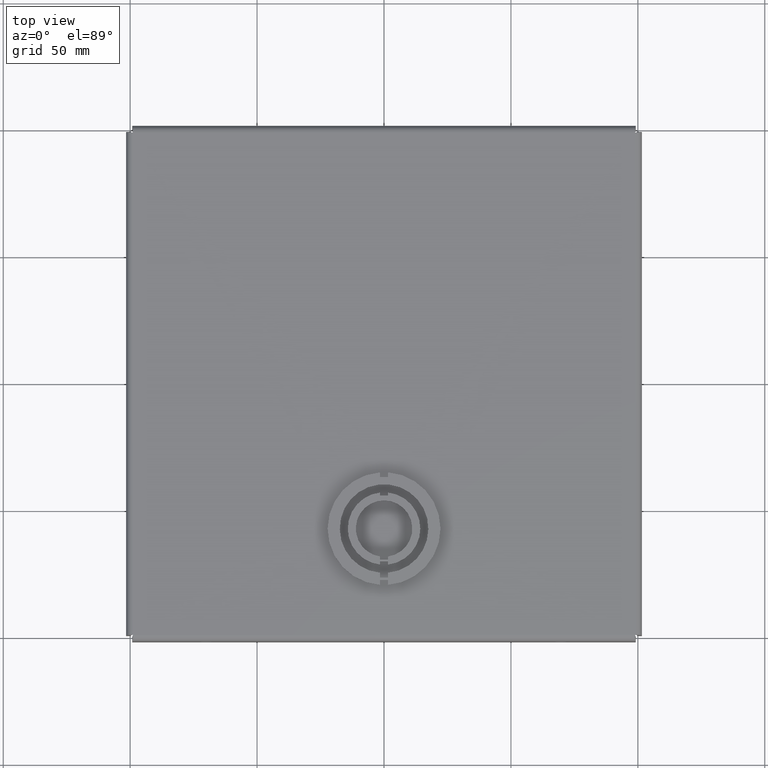
[diagram: clean part render]
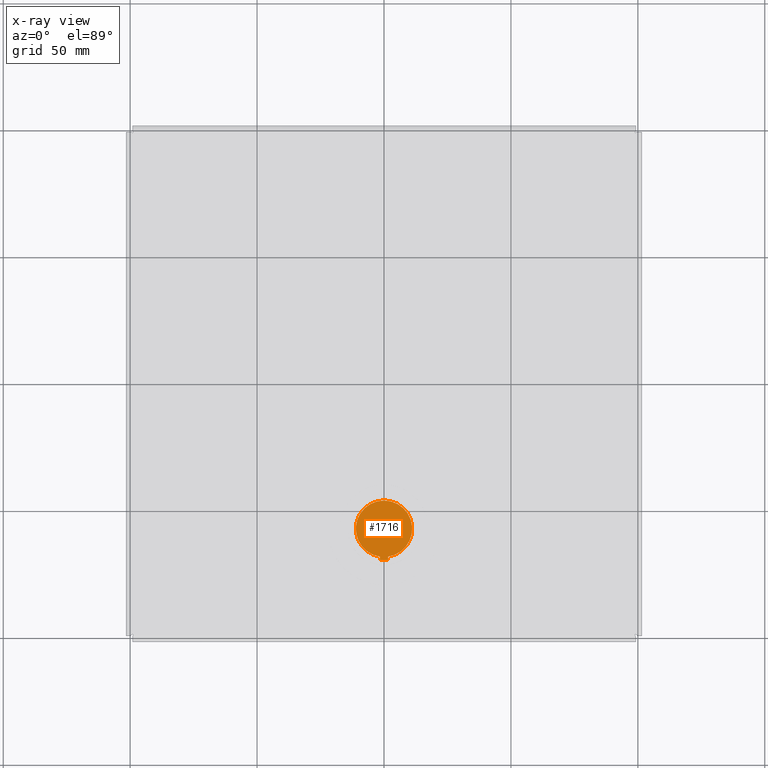
[diagram: x-ray — body ghosted, one internal face saturated and labeled with its STEP entity id]
A machine part, top view, then the same camera in x-ray: the body is ghosted and one INTERNAL B-rep face — a face not visible from any outside direction — is saturated and labeled: STEP entity #1716.
In plain terms, the highlighted planar face has unit normal (0, 0, 1).
Its self-contained STEP definition (entity closure, byte-faithful):
#100=CIRCLE('',#1815,0.4375);
#236=FACE_OUTER_BOUND('',#370,.T.);
#370=EDGE_LOOP('',(#1542,#1543,#1544,#1545));
#494=LINE('',#2882,#665);
#499=LINE('',#2895,#670);
#501=LINE('',#2898,#672);
#665=VECTOR('',#2161,0.0500094709920074);
#670=VECTOR('',#2174,0.0500000000000003);
#672=VECTOR('',#2178,0.125220388203877);
#820=VERTEX_POINT('',#2879);
#821=VERTEX_POINT('',#2881);
#823=VERTEX_POINT('',#2887);
#825=VERTEX_POINT('',#2893);
#1020=EDGE_CURVE('',#821,#820,#494,.T.);
#1024=EDGE_CURVE('',#820,#823,#100,.T.);
#1027=EDGE_CURVE('',#823,#825,#499,.T.);
#1029=EDGE_CURVE('',#825,#821,#501,.T.);
#1542=ORIENTED_EDGE('',*,*,#1027,.T.);
#1543=ORIENTED_EDGE('',*,*,#1029,.T.);
#1544=ORIENTED_EDGE('',*,*,#1020,.T.);
#1545=ORIENTED_EDGE('',*,*,#1024,.T.);
#1614=PLANE('',#1849);
#1716=ADVANCED_FACE('',(#236),#1614,.T.);
#1815=AXIS2_PLACEMENT_3D('',#2889,#2168,#2169);
#1849=AXIS2_PLACEMENT_3D('',#2999,#2282,#2283);
#2161=DIRECTION('',(0.,1.,0.));
#2168=DIRECTION('center_axis',(0.,0.,1.));
#2169=DIRECTION('ref_axis',(0.143183871162248,-0.989696104387096,0.));
#2174=DIRECTION('',(0.,-1.,0.));
#2178=DIRECTION('',(1.,0.,0.));
#2282=DIRECTION('center_axis',(0.,0.,1.));
#2283=DIRECTION('ref_axis',(1.,0.,0.));
#2879=CARTESIAN_POINT('',(0.0626429436334847,-2.68499204566935,0.074));
#2881=CARTESIAN_POINT('',(0.0626429436334847,-2.73500151666136,0.074));
#2882=CARTESIAN_POINT('',(0.0626429436334847,-1.34249602283468,0.074));
#2887=CARTESIAN_POINT('',(-0.0625774445703923,-2.68500151666136,0.074));
#2889=CARTESIAN_POINT('Origin',(1.3987061727561E-15,-2.252,0.074));
#2893=CARTESIAN_POINT('',(-0.0625774445703923,-2.73500151666136,0.074));
#2895=CARTESIAN_POINT('',(-0.0625774445703923,-1.36750075833068,0.074));
#2898=CARTESIAN_POINT('',(0.0313214718167425,-2.73500151666136,0.074));
#2999=CARTESIAN_POINT('Origin',(3.49676543189026E-16,2.38415824901608E-16,
0.074));